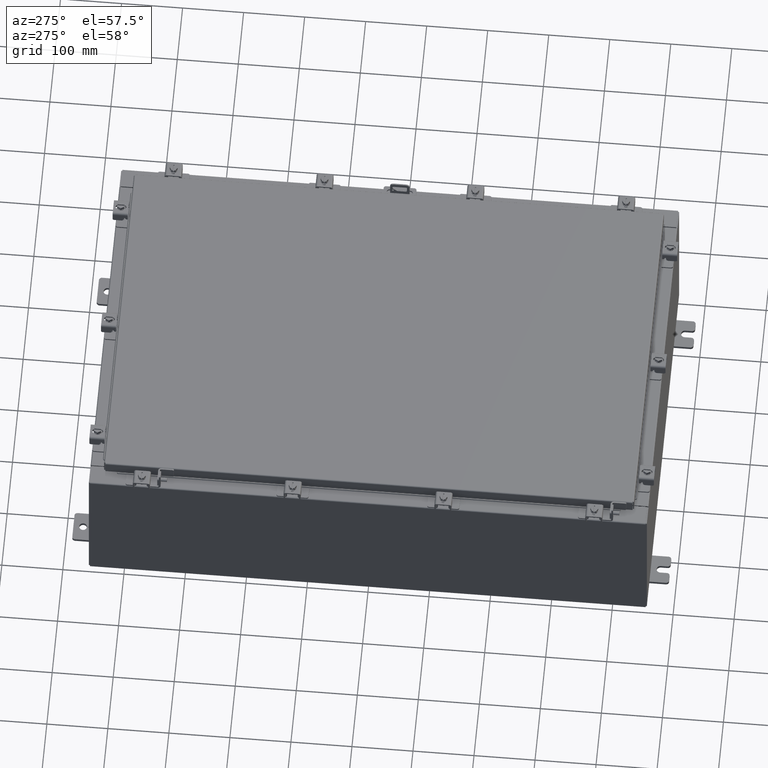
[diagram: clean part render]
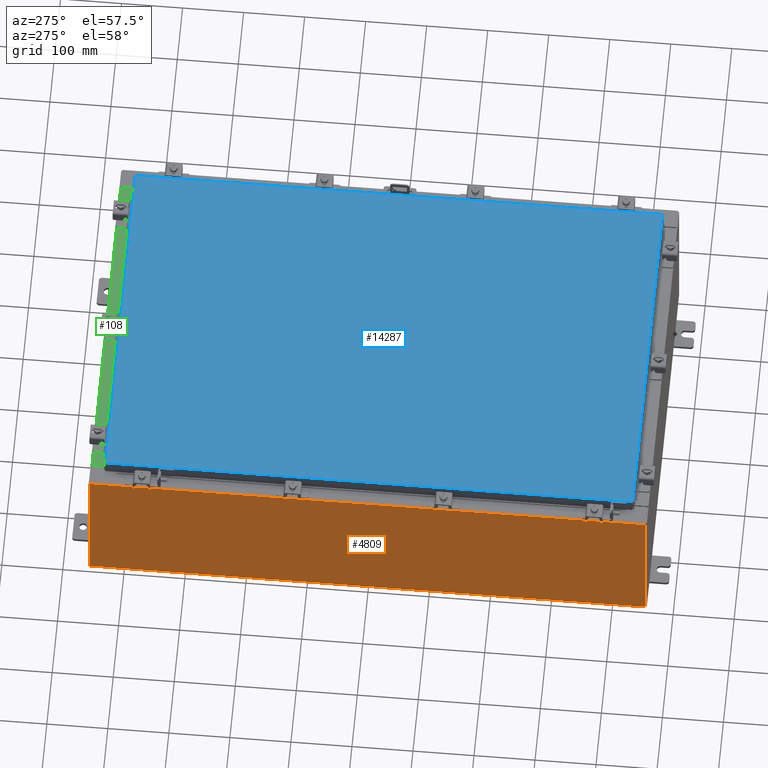
[diagram: same view with three faces highlighted in distinct colors, each labeled with its STEP entity id]
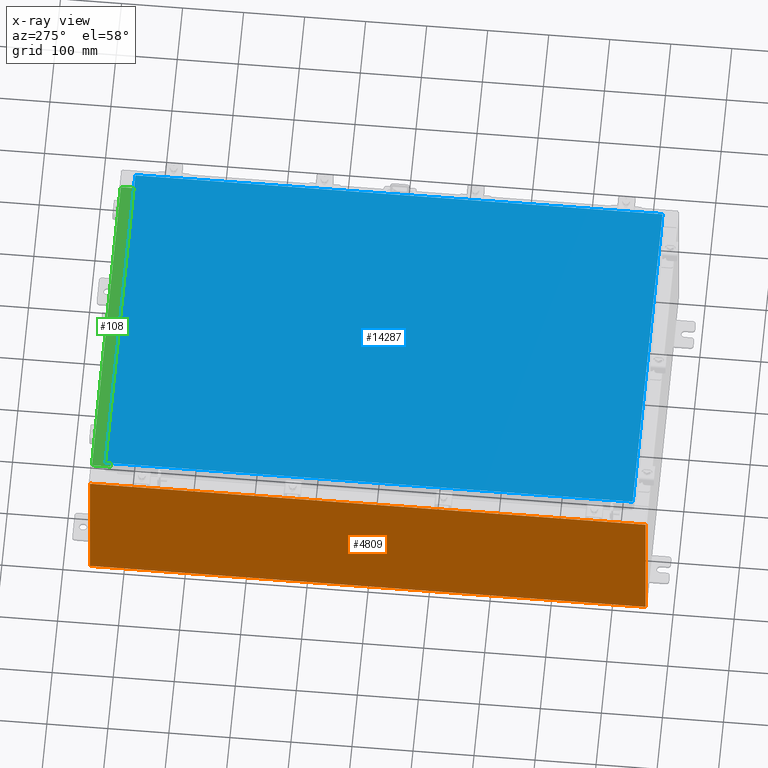
[diagram: x-ray of the same camera — body ghosted, the three highlighted faces saturated]
A machine part, auxiliary view with three faces highlighted in distinct colors.
The next image is the same camera in x-ray (body ghosted, the three faces saturated) — at least one of them is partly hidden behind the body in this view.
Their STEP definitions:

[orange] entity #4809 — the highlighted planar face has unit normal (1, 0, 0).
#147 = LINE ( 'NONE', #21699, #4956 ) ;
#894 = CARTESIAN_POINT ( 'NONE',  ( -12.00000000000000200, 0.0000000000000000000, -4.253780798634223500E-014 ) ) ;
#925 = CARTESIAN_POINT ( 'NONE',  ( -12.00000000000000200, 17.92529999999999600, 0.01299999999999984300 ) ) ;
#2677 = PLANE ( 'NONE',  #18543 ) ;
#3673 = LINE ( 'NONE', #16379, #16996 ) ;
#3711 = DIRECTION ( 'NONE',  ( 0.0000000000000000000, 1.000000000000000000, 0.0000000000000000000 ) ) ;
#4809 = ADVANCED_FACE ( 'NONE', ( #16381 ), #2677, .F. ) ;
#4956 = VECTOR ( 'NONE', #19905, 39.37007874015748100 ) ;
#5294 = VECTOR ( 'NONE', #17225, 39.37007874015748100 ) ;
#6329 = DIRECTION ( 'NONE',  ( 3.523082860860887800E-015, 0.0000000000000000000, -1.000000000000000000 ) ) ;
#6342 = LINE ( 'NONE', #8958, #15408 ) ;
#6382 = CARTESIAN_POINT ( 'NONE',  ( -12.00000000000000200, 17.92529999999999600, -4.253780798634223500E-014 ) ) ;
#6717 = CARTESIAN_POINT ( 'NONE',  ( -12.00000000000000200, -17.92530000000000400, 0.01299999999999984700 ) ) ;
#7577 = ORIENTED_EDGE ( 'NONE', *, *, #9661, .T. ) ;
#7713 = VERTEX_POINT ( 'NONE', #17129 ) ;
#8958 = CARTESIAN_POINT ( 'NONE',  ( -12.00000000000000200, -17.92530000000000400, -4.253780798634223500E-014 ) ) ;
#9661 = EDGE_CURVE ( 'NONE', #7713, #23083, #18600, .T. ) ;
#10674 = EDGE_LOOP ( 'NONE', ( #16571, #7577, #13443, #17393 ) ) ;
#10776 = DIRECTION ( 'NONE',  ( -3.523082860860888200E-015, 0.0000000000000000000, 1.000000000000000000 ) ) ;
#10917 = EDGE_CURVE ( 'NONE', #12791, #23083, #147, .T. ) ;
#11594 = EDGE_CURVE ( 'NONE', #12791, #11977, #6342, .T. ) ;
#11977 = VERTEX_POINT ( 'NONE', #13499 ) ;
#12791 = VERTEX_POINT ( 'NONE', #6717 ) ;
#13062 = EDGE_CURVE ( 'NONE', #11977, #7713, #3673, .T. ) ;
#13443 = ORIENTED_EDGE ( 'NONE', *, *, #10917, .F. ) ;
#13499 = CARTESIAN_POINT ( 'NONE',  ( -12.00000000000003600, -17.92530000000000400, 9.837599999999998300 ) ) ;
#15408 = VECTOR ( 'NONE', #10776, 39.37007874015748100 ) ;
#16379 = CARTESIAN_POINT ( 'NONE',  ( -12.00000000000003600, -17.92530000000000400, 9.837599999999998300 ) ) ;
#16381 = FACE_OUTER_BOUND ( 'NONE', #10674, .T. ) ;
#16571 = ORIENTED_EDGE ( 'NONE', *, *, #13062, .T. ) ;
#16996 = VECTOR ( 'NONE', #3711, 39.37007874015748100 ) ;
#17129 = CARTESIAN_POINT ( 'NONE',  ( -12.00000000000003600, 17.92529999999999600, 9.837599999999998300 ) ) ;
#17169 = DIRECTION ( 'NONE',  ( 1.000000000000000000, 0.0000000000000000000, 3.523082860860887800E-015 ) ) ;
#17225 = DIRECTION ( 'NONE',  ( 3.523082860860888200E-015, 0.0000000000000000000, -1.000000000000000000 ) ) ;
#17393 = ORIENTED_EDGE ( 'NONE', *, *, #11594, .T. ) ;
#18543 = AXIS2_PLACEMENT_3D ( 'NONE', #894, #17169, #6329 ) ;
#18600 = LINE ( 'NONE', #6382, #5294 ) ;
#19905 = DIRECTION ( 'NONE',  ( -0.0000000000000000000, 1.000000000000000000, -0.0000000000000000000 ) ) ;
#21699 = CARTESIAN_POINT ( 'NONE',  ( -12.00000000000000200, 17.92529999999999600, 0.01299999999999984700 ) ) ;
#23083 = VERTEX_POINT ( 'NONE', #925 ) ;

[blue] entity #14287 — the highlighted planar face has unit normal (0, 0, -1).
#967 = AXIS2_PLACEMENT_3D ( 'NONE', #6983, #8814, #21432 ) ;
#1453 = LINE ( 'NONE', #12632, #5146 ) ;
#1640 = VECTOR ( 'NONE', #2407, 39.37007874015748100 ) ;
#2407 = DIRECTION ( 'NONE',  ( -1.000000000000000000, -0.0000000000000000000, -0.0000000000000000000 ) ) ;
#2607 = DIRECTION ( 'NONE',  ( 0.0000000000000000000, -1.000000000000000000, 0.0000000000000000000 ) ) ;
#2692 = EDGE_CURVE ( 'NONE', #3363, #18398, #1453, .T. ) ;
#3199 = EDGE_LOOP ( 'NONE', ( #14727, #3394, #21228, #18348 ) ) ;
#3363 = VERTEX_POINT ( 'NONE', #16159 ) ;
#3394 = ORIENTED_EDGE ( 'NONE', *, *, #7322, .T. ) ;
#3576 = DIRECTION ( 'NONE',  ( 1.000000000000000000, -0.0000000000000000000, -0.0000000000000000000 ) ) ;
#5121 = CARTESIAN_POINT ( 'NONE',  ( 10.99029999999999800, -17.00630000000000300, -1.297627796990525000E-015 ) ) ;
#5146 = VECTOR ( 'NONE', #3576, 39.37007874015748100 ) ;
#6686 = LINE ( 'NONE', #13459, #19991 ) ;
#6983 = CARTESIAN_POINT ( 'NONE',  ( 0.0000000000000000000, 0.0000000000000000000, 0.0000000000000000000 ) ) ;
#7322 = EDGE_CURVE ( 'NONE', #18398, #10631, #18921, .T. ) ;
#7553 = EDGE_CURVE ( 'NONE', #10631, #22448, #15525, .T. ) ;
#8297 = CARTESIAN_POINT ( 'NONE',  ( 10.99029999999999800, -17.00630000000000300, -1.297627796990525000E-015 ) ) ;
#8318 = EDGE_CURVE ( 'NONE', #22448, #3363, #6686, .T. ) ;
#8814 = DIRECTION ( 'NONE',  ( 0.0000000000000000000, 0.0000000000000000000, -1.000000000000000000 ) ) ;
#10631 = VERTEX_POINT ( 'NONE', #19123 ) ;
#12632 = CARTESIAN_POINT ( 'NONE',  ( -10.99030000000000100, -17.00630000000000000, 8.878505979408856000E-016 ) ) ;
#13257 = CARTESIAN_POINT ( 'NONE',  ( 10.99029999999999800, 17.00630000000000000, -2.048885995248197400E-016 ) ) ;
#13305 = FACE_OUTER_BOUND ( 'NONE', #3199, .T. ) ;
#13459 = CARTESIAN_POINT ( 'NONE',  ( -10.99030000000000500, 17.00630000000000000, -2.390366994456230300E-015 ) ) ;
#14287 = ADVANCED_FACE ( 'NONE', ( #13305 ), #19636, .F. ) ;
#14727 = ORIENTED_EDGE ( 'NONE', *, *, #2692, .T. ) ;
#15525 = LINE ( 'NONE', #13257, #1640 ) ;
#16159 = CARTESIAN_POINT ( 'NONE',  ( -10.99030000000000100, -17.00630000000000000, 8.878505979408856000E-016 ) ) ;
#18348 = ORIENTED_EDGE ( 'NONE', *, *, #8318, .T. ) ;
#18398 = VERTEX_POINT ( 'NONE', #8297 ) ;
#18921 = LINE ( 'NONE', #5121, #19480 ) ;
#19123 = CARTESIAN_POINT ( 'NONE',  ( 10.99029999999999800, 17.00630000000000000, -2.048885995248197400E-016 ) ) ;
#19480 = VECTOR ( 'NONE', #21689, 39.37007874015748100 ) ;
#19636 = PLANE ( 'NONE',  #967 ) ;
#19991 = VECTOR ( 'NONE', #2607, 39.37007874015748100 ) ;
#20460 = CARTESIAN_POINT ( 'NONE',  ( -10.99030000000000500, 17.00630000000000000, -2.390366994456230300E-015 ) ) ;
#21228 = ORIENTED_EDGE ( 'NONE', *, *, #7553, .T. ) ;
#21432 = DIRECTION ( 'NONE',  ( -1.000000000000000000, 0.0000000000000000000, -0.0000000000000000000 ) ) ;
#21689 = DIRECTION ( 'NONE',  ( 0.0000000000000000000, 1.000000000000000000, 0.0000000000000000000 ) ) ;
#22448 = VERTEX_POINT ( 'NONE', #20460 ) ;

[green] entity #108 — the highlighted planar face has unit normal (0, 0, 1).
#108 = ADVANCED_FACE ( 'NONE', ( #8578 ), #18535, .T. ) ;
#897 = LINE ( 'NONE', #21025, #19549 ) ;
#963 = AXIS2_PLACEMENT_3D ( 'NONE', #17112, #9977, #11327 ) ;
#1424 = VERTEX_POINT ( 'NONE', #18913 ) ;
#3007 = DIRECTION ( 'NONE',  ( -1.000000000000000000, 0.0000000000000000000, 0.0000000000000000000 ) ) ;
#3060 = CARTESIAN_POINT ( 'NONE',  ( -10.63720000000000200, -1.287299999999999200, 5.000000000000004400 ) ) ;
#3173 = EDGE_CURVE ( 'NONE', #21620, #13478, #897, .T. ) ;
#3588 = ORIENTED_EDGE ( 'NONE', *, *, #21230, .F. ) ;
#4626 = EDGE_CURVE ( 'NONE', #13478, #9372, #14972, .T. ) ;
#5695 = CARTESIAN_POINT ( 'NONE',  ( -10.63720000000000200, -0.08770000000000081900, 5.000000000000000000 ) ) ;
#5841 = CARTESIAN_POINT ( 'NONE',  ( 10.63720000000000200, -1.300299999999999800, 5.000000000000004400 ) ) ;
#6530 = CARTESIAN_POINT ( 'NONE',  ( 4.504626575497439200E-018, -0.08770000000000081900, 5.000000000000000000 ) ) ;
#7655 = DIRECTION ( 'NONE',  ( -0.0000000000000000000, -1.000000000000000000, 3.566381192773190000E-015 ) ) ;
#8578 = FACE_OUTER_BOUND ( 'NONE', #18802, .T. ) ;
#8893 = CARTESIAN_POINT ( 'NONE',  ( 10.63720000000000200, -1.287299999999999900, 5.000000000000004400 ) ) ;
#9372 = VERTEX_POINT ( 'NONE', #5695 ) ;
#9485 = CARTESIAN_POINT ( 'NONE',  ( -10.63720000000000200, -0.07469999999999973900, 5.000000000000000000 ) ) ;
#9977 = DIRECTION ( 'NONE',  ( 0.0000000000000000000, 3.566381192773190000E-015, 1.000000000000000000 ) ) ;
#10246 = DIRECTION ( 'NONE',  ( -1.000000000000000000, -5.136404305013091600E-017, 1.831837571187793700E-031 ) ) ;
#11204 = VECTOR ( 'NONE', #7655, 39.37007874015748100 ) ;
#11327 = DIRECTION ( 'NONE',  ( 0.0000000000000000000, -1.000000000000000000, 3.566381192773190000E-015 ) ) ;
#12603 = ORIENTED_EDGE ( 'NONE', *, *, #3173, .F. ) ;
#13075 = DIRECTION ( 'NONE',  ( -0.0000000000000000000, 1.000000000000000000, -3.566381192773190000E-015 ) ) ;
#13478 = VERTEX_POINT ( 'NONE', #3060 ) ;
#14266 = ORIENTED_EDGE ( 'NONE', *, *, #21519, .T. ) ;
#14400 = VECTOR ( 'NONE', #13075, 39.37007874015748100 ) ;
#14972 = LINE ( 'NONE', #9485, #14400 ) ;
#16307 = VECTOR ( 'NONE', #10246, 39.37007874015748100 ) ;
#17112 = CARTESIAN_POINT ( 'NONE',  ( 0.0000000000000000000, 1.782631094477737600E-014, 5.000000000000000000 ) ) ;
#18535 = PLANE ( 'NONE',  #963 ) ;
#18802 = EDGE_LOOP ( 'NONE', ( #21743, #12603, #3588, #14266 ) ) ;
#18913 = CARTESIAN_POINT ( 'NONE',  ( 10.63720000000000400, -0.08770000000000047200, 5.000000000000000000 ) ) ;
#19549 = VECTOR ( 'NONE', #3007, 39.37007874015748100 ) ;
#20519 = LINE ( 'NONE', #6530, #16307 ) ;
#20807 = LINE ( 'NONE', #5841, #11204 ) ;
#21025 = CARTESIAN_POINT ( 'NONE',  ( 10.63720000000000400, -1.287299999999999900, 5.000000000000003600 ) ) ;
#21230 = EDGE_CURVE ( 'NONE', #1424, #21620, #20807, .T. ) ;
#21519 = EDGE_CURVE ( 'NONE', #1424, #9372, #20519, .T. ) ;
#21620 = VERTEX_POINT ( 'NONE', #8893 ) ;
#21743 = ORIENTED_EDGE ( 'NONE', *, *, #4626, .F. ) ;